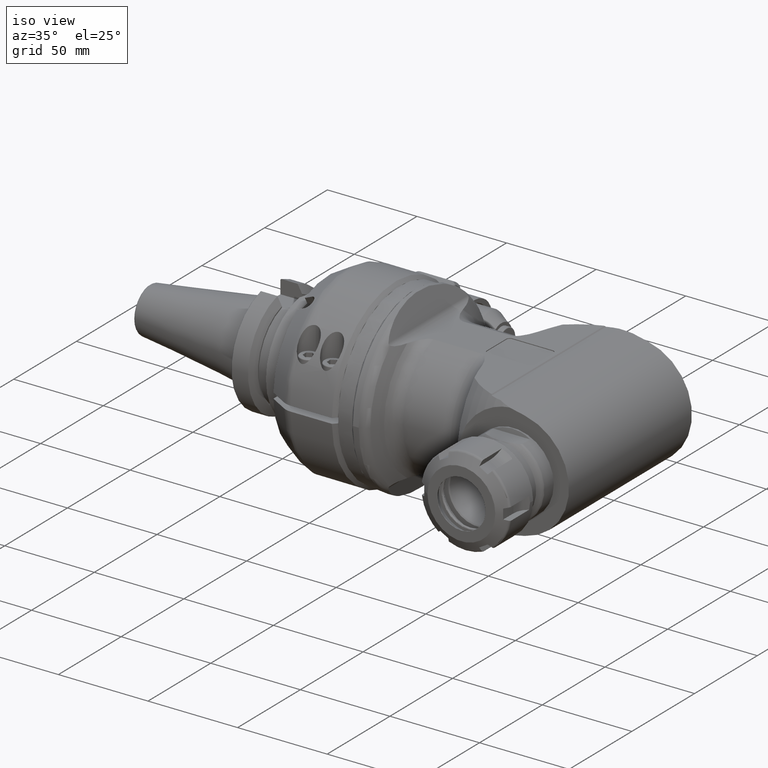
[diagram: clean part render]
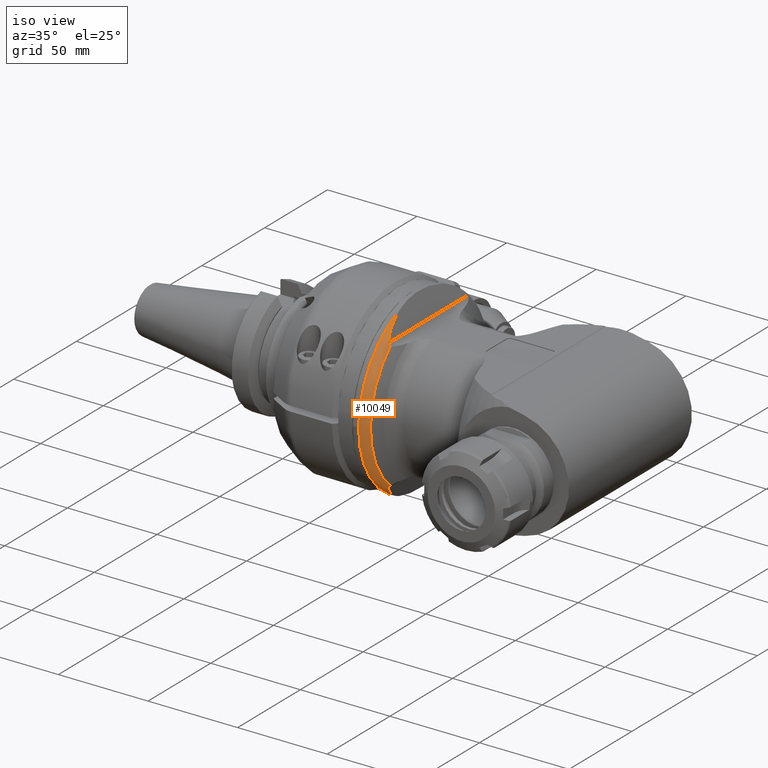
[diagram: same view with one face highlighted and labeled with its STEP entity id]
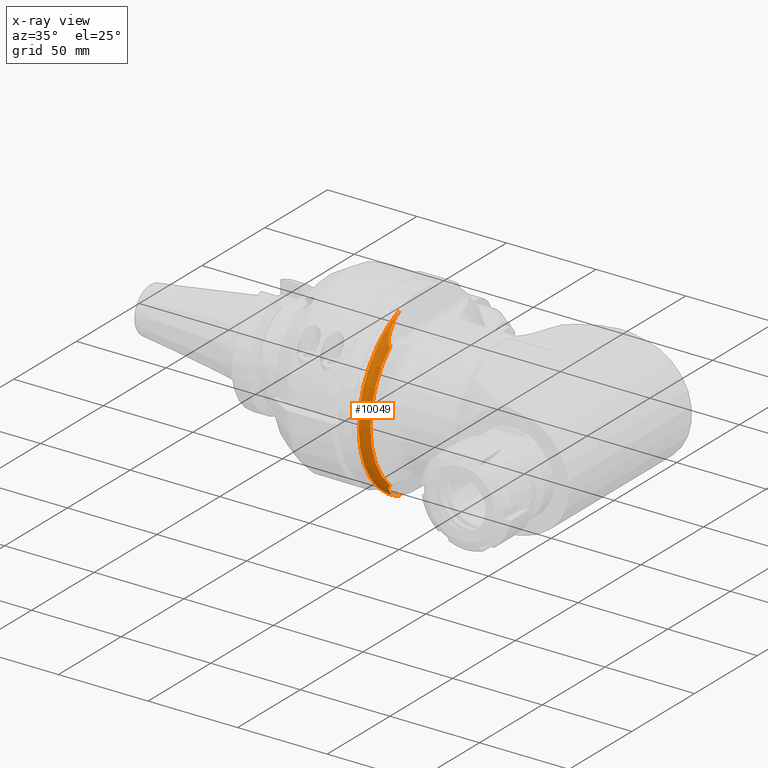
[diagram: x-ray of the same camera — body ghosted, the highlighted face saturated]
A machine part, iso view. The second image highlights one B-rep face of the part: STEP entity #10049.
The next image is the same camera in x-ray: the body ghosted, the highlighted face saturated — about 0% of this face is hidden behind the body in this view.
In plain terms, the highlighted toroidal blend (fillet) surface has major radius 45 mm and minor (blend) radius 5 mm.
Its self-contained STEP definition (entity closure, byte-faithful):
#380=B_SPLINE_CURVE_WITH_KNOTS('',3,(#14633,#14634,#14635,#14636,#14637,
#14638,#14639,#14640,#14641,#14642,#14643,#14644),.UNSPECIFIED.,.F.,.F.,
(4,2,2,2,2,4),(1.15630163760486,1.22459873224959,1.31695713700631,1.40204907066323,
1.50898451468494,1.53966227669797),.UNSPECIFIED.);
#450=B_SPLINE_CURVE_WITH_KNOTS('',3,(#19201,#19202,#19203,#19204,#19205,
#19206,#19207),.UNSPECIFIED.,.F.,.F.,(4,3,4),(3.30248776745844,3.42753401940917,
3.62248695338785),.UNSPECIFIED.);
#451=B_SPLINE_CURVE_WITH_KNOTS('',3,(#19210,#19211,#19212,#19213,#19214,
#19215,#19216,#19217,#19218,#19219,#19220,#19221,#19222,#19223),
 .UNSPECIFIED.,.F.,.F.,(4,2,2,2,2,2,4),(8.52445448942661,8.63978623946649,
8.9704434475925,9.30110065571852,9.67241647902402,10.0437323023295,10.2382390719203),
 .UNSPECIFIED.);
#452=B_SPLINE_CURVE_WITH_KNOTS('',3,(#19228,#19229,#19230,#19231,#19232,
#19233,#19234,#19235,#19236,#19237,#19238,#19239,#19240,#19241),
 .UNSPECIFIED.,.F.,.F.,(4,2,2,2,2,2,4),(3.46326501541199,3.65777178500081,
4.02908760830632,4.40040343161182,4.73106063973784,5.06171784786385,5.17704959790373),
 .UNSPECIFIED.);
#580=TOROIDAL_SURFACE('',#10685,45.,5.);
#2417=FACE_OUTER_BOUND('',#2971,.T.);
#2971=EDGE_LOOP('',(#6981,#6982,#6983,#6984,#6985,#6986,#6987));
#3549=CIRCLE('',#10646,47.11309145933);
#3567=CIRCLE('',#10686,50.);
#3568=CIRCLE('',#10687,50.);
#4022=VERTEX_POINT('',#14604);
#4023=VERTEX_POINT('',#14617);
#4024=VERTEX_POINT('',#14632);
#4070=VERTEX_POINT('',#19199);
#4071=VERTEX_POINT('',#19209);
#4072=VERTEX_POINT('',#19224);
#4073=VERTEX_POINT('',#19226);
#5149=EDGE_CURVE('',#4023,#4022,#3549,.T.);
#5151=EDGE_CURVE('',#4023,#4024,#380,.T.);
#5241=EDGE_CURVE('',#4070,#4022,#450,.T.);
#5242=EDGE_CURVE('',#4071,#4070,#451,.T.);
#5243=EDGE_CURVE('',#4071,#4072,#3567,.T.);
#5244=EDGE_CURVE('',#4072,#4073,#3568,.T.);
#5245=EDGE_CURVE('',#4024,#4073,#452,.T.);
#6981=ORIENTED_EDGE('',*,*,#5242,.F.);
#6982=ORIENTED_EDGE('',*,*,#5243,.T.);
#6983=ORIENTED_EDGE('',*,*,#5244,.T.);
#6984=ORIENTED_EDGE('',*,*,#5245,.F.);
#6985=ORIENTED_EDGE('',*,*,#5151,.F.);
#6986=ORIENTED_EDGE('',*,*,#5149,.T.);
#6987=ORIENTED_EDGE('',*,*,#5241,.F.);
#10049=ADVANCED_FACE('',(#2417),#580,.T.);
#10646=AXIS2_PLACEMENT_3D('',#14618,#11684,#11685);
#10685=AXIS2_PLACEMENT_3D('',#19208,#11764,#11765);
#10686=AXIS2_PLACEMENT_3D('',#19225,#11766,#11767);
#10687=AXIS2_PLACEMENT_3D('',#19227,#11768,#11769);
#11684=DIRECTION('center_axis',(-1.,0.,0.));
#11685=DIRECTION('ref_axis',(0.,-1.,0.));
#11764=DIRECTION('center_axis',(-1.,0.,0.));
#11765=DIRECTION('ref_axis',(0.,-1.,1.22464679914735E-16));
#11766=DIRECTION('center_axis',(1.,0.,0.));
#11767=DIRECTION('ref_axis',(0.,-1.,0.));
#11768=DIRECTION('center_axis',(1.,0.,0.));
#11769=DIRECTION('ref_axis',(0.,-1.,0.));
#14604=CARTESIAN_POINT('',(196.909284501666,-31.197641652121,35.3036902037306));
#14617=CARTESIAN_POINT('',(196.909284501613,-31.1976416522546,-35.3036902037658));
#14618=CARTESIAN_POINT('Origin',(196.9092845007,0.,0.));
#14632=CARTESIAN_POINT('',(196.1051567178,-31.53007086037,-36.63191942671));
#14633=CARTESIAN_POINT('Ctrl Pts',(196.90928450166,-31.1976416525379,-35.3036902032917));
#14634=CARTESIAN_POINT('Ctrl Pts',(196.867802760606,-31.2805425470323,-35.3491463016619));
#14635=CARTESIAN_POINT('Ctrl Pts',(196.822525568012,-31.3582431962635,-35.4008129039564));
#14636=CARTESIAN_POINT('Ctrl Pts',(196.707822409925,-31.5199050766533,-35.5403684488626));
#14637=CARTESIAN_POINT('Ctrl Pts',(196.636305973062,-31.5952282481428,-35.6335627887394));
#14638=CARTESIAN_POINT('Ctrl Pts',(196.492629336941,-31.6889909577115,-35.8437858272666));
#14639=CARTESIAN_POINT('Ctrl Pts',(196.425259734238,-31.7086422740172,-35.9523251351443));
#14640=CARTESIAN_POINT('Ctrl Pts',(196.281442863696,-31.6992777188419,-36.2130204636942));
#14641=CARTESIAN_POINT('Ctrl Pts',(196.211711753331,-31.6567958545707,-36.3612311502517));
#14642=CARTESIAN_POINT('Ctrl Pts',(196.136859439701,-31.5738049700807,-36.5470853575159));
#14643=CARTESIAN_POINT('Ctrl Pts',(196.120710741279,-31.5530527069985,-36.5891850982887));
#14644=CARTESIAN_POINT('Ctrl Pts',(196.105156717758,-31.5300708603673,-36.6319194266932));
#19199=CARTESIAN_POINT('',(196.1051567178,-31.53007086038,36.63191942669));
#19201=CARTESIAN_POINT('Ctrl Pts',(196.105156717764,-31.5300708603769,36.6319194266754));
#19202=CARTESIAN_POINT('Ctrl Pts',(196.181328649595,-31.6426186942238,36.4226387639796));
#19203=CARTESIAN_POINT('Ctrl Pts',(196.273362370242,-31.7087119497583,36.2221670955522));
#19204=CARTESIAN_POINT('Ctrl Pts',(196.387018939686,-31.7048861411552,36.0223476182343));
#19205=CARTESIAN_POINT('Ctrl Pts',(196.564214827875,-31.6989215272592,35.7108197414566));
#19206=CARTESIAN_POINT('Ctrl Pts',(196.765367010042,-31.4852594932355,35.4613964010003));
#19207=CARTESIAN_POINT('Ctrl Pts',(196.909284501718,-31.197641652422,35.3036902032281));
#19208=CARTESIAN_POINT('Origin',(192.3777456357,0.,0.));
#19209=CARTESIAN_POINT('',(192.3777456357,-17.40492767463,46.87289720767));
#19210=CARTESIAN_POINT('Ctrl Pts',(192.377745635738,-17.4049276746258,46.8728972076726));
#19211=CARTESIAN_POINT('Ctrl Pts',(192.427101632847,-17.7701216774767,46.737292720101));
#19212=CARTESIAN_POINT('Ctrl Pts',(192.477751510717,-18.1296968241042,46.5981333243543));
#19213=CARTESIAN_POINT('Ctrl Pts',(192.678012482352,-19.4961631036191,46.0479208267895));
#19214=CARTESIAN_POINT('Ctrl Pts',(192.856173361094,-20.590220041838,45.5584278354153));
#19215=CARTESIAN_POINT('Ctrl Pts',(193.250349658616,-22.7176844987486,44.4754373586897));
#19216=CARTESIAN_POINT('Ctrl Pts',(193.46656037435,-23.7507826391231,43.8814032993668));
#19217=CARTESIAN_POINT('Ctrl Pts',(193.918058123146,-25.6827605825767,42.640923429617));
#19218=CARTESIAN_POINT('Ctrl Pts',(194.201366183599,-26.7614724252077,41.8625409307726));
#19219=CARTESIAN_POINT('Ctrl Pts',(194.823715761596,-28.762998259754,40.1526495182193));
#19220=CARTESIAN_POINT('Ctrl Pts',(195.162728215626,-29.6858895034814,39.221220455856));
#19221=CARTESIAN_POINT('Ctrl Pts',(195.680661636613,-30.8101966263514,37.7982100769141));
#19222=CARTESIAN_POINT('Ctrl Pts',(195.891535296277,-31.2144345402302,37.2188394586297));
#19223=CARTESIAN_POINT('Ctrl Pts',(196.105156717809,-31.5300708603187,36.6319194266602));
#19224=CARTESIAN_POINT('',(192.377745635738,-50.,6.12323399573677E-15));
#19225=CARTESIAN_POINT('Origin',(192.3777456357,0.,0.));
#19226=CARTESIAN_POINT('',(192.3777456357,-17.40492767463,-46.87289720767));
#19227=CARTESIAN_POINT('Origin',(192.3777456357,0.,0.));
#19228=CARTESIAN_POINT('Ctrl Pts',(196.105156717802,-31.5300708603091,-36.631919426678));
#19229=CARTESIAN_POINT('Ctrl Pts',(195.891535296273,-31.2144345402221,-37.2188394586415));
#19230=CARTESIAN_POINT('Ctrl Pts',(195.680661636611,-30.8101966263475,-37.7982100769191));
#19231=CARTESIAN_POINT('Ctrl Pts',(195.162728215626,-29.6858895034814,-39.221220455856));
#19232=CARTESIAN_POINT('Ctrl Pts',(194.823715761596,-28.762998259754,-40.1526495182193));
#19233=CARTESIAN_POINT('Ctrl Pts',(194.201366183599,-26.7614724252077,-41.8625409307726));
#19234=CARTESIAN_POINT('Ctrl Pts',(193.918058123146,-25.6827605825767,-42.640923429617));
#19235=CARTESIAN_POINT('Ctrl Pts',(193.46656037435,-23.7507826391231,-43.8814032993668));
#19236=CARTESIAN_POINT('Ctrl Pts',(193.250349658616,-22.7176844987486,-44.4754373586897));
#19237=CARTESIAN_POINT('Ctrl Pts',(192.856173361094,-20.590220041838,-45.5584278354153));
#19238=CARTESIAN_POINT('Ctrl Pts',(192.678012482352,-19.4961631036191,-46.0479208267895));
#19239=CARTESIAN_POINT('Ctrl Pts',(192.477751510717,-18.1296968241042,-46.5981333243543));
#19240=CARTESIAN_POINT('Ctrl Pts',(192.427101632847,-17.7701216774767,-46.737292720101));
#19241=CARTESIAN_POINT('Ctrl Pts',(192.377745635738,-17.4049276746258,-46.8728972076726));